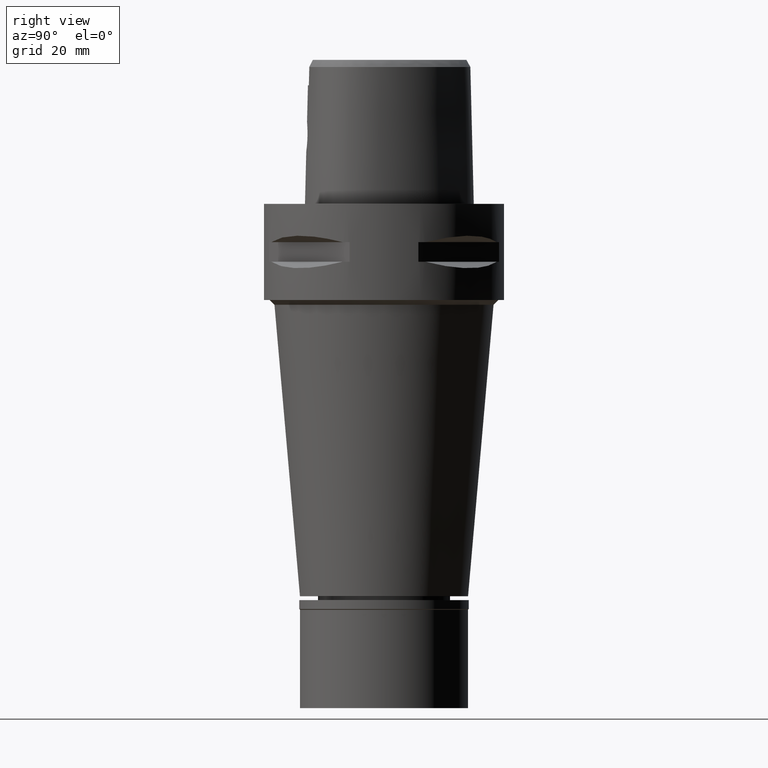
[diagram: clean part render]
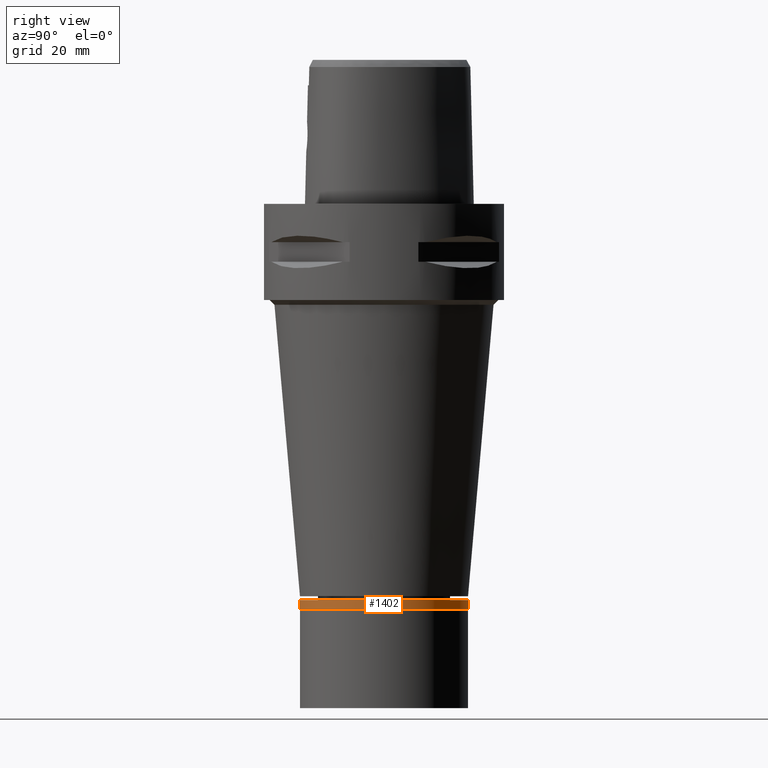
[diagram: same view with one face highlighted and labeled with its STEP entity id]
A machine part, right view. The second image highlights one B-rep face of the part: STEP entity #1402.
In plain terms, the highlighted cylindrical surface (partial cylindrical patch) has radius 17.65 mm, axis along (0, 0, -1).
Its self-contained STEP definition (entity closure, byte-faithful):
#2 = CARTESIAN_POINT ( 'NONE',  ( 0.0000000000000000000, -17.64999999999999858, 0.0000000000000000000 ) ) ;
#29 = VERTEX_POINT ( 'NONE', #3543 ) ;
#91 = CARTESIAN_POINT ( 'NONE',  ( 0.0000000000000000000, 0.0000000000000000000, 0.0000000000000000000 ) ) ;
#294 = EDGE_CURVE ( 'NONE', #29, #2114, #4610, .T. ) ;
#304 = DIRECTION ( 'NONE',  ( 0.0000000000000000000, 0.0000000000000000000, -1.000000000000000000 ) ) ;
#418 = FACE_OUTER_BOUND ( 'NONE', #1207, .T. ) ;
#886 = AXIS2_PLACEMENT_3D ( 'NONE', #4041, #2101, #3236 ) ;
#969 = ORIENTED_EDGE ( 'NONE', *, *, #294, .T. ) ;
#1083 = CARTESIAN_POINT ( 'NONE',  ( 0.0000000000000000000, 0.0000000000000000000, 0.0000000000000000000 ) ) ;
#1207 = EDGE_LOOP ( 'NONE', ( #969, #4885, #3654, #3462 ) ) ;
#1242 = DIRECTION ( 'NONE',  ( 0.0000000000000000000, -1.000000000000000000, 0.0000000000000000000 ) ) ;
#1254 = CARTESIAN_POINT ( 'NONE',  ( 0.0000000000000000000, -17.64999999999999858, 0.0000000000000000000 ) ) ;
#1281 = VECTOR ( 'NONE', #1496, 1000.000000000000000 ) ;
#1402 = ADVANCED_FACE ( 'NONE', ( #418 ), #4667, .T. ) ;
#1496 = DIRECTION ( 'NONE',  ( 0.0000000000000000000, 0.0000000000000000000, -1.000000000000000000 ) ) ;
#2086 = CIRCLE ( 'NONE', #886, 17.64999999999999858 ) ;
#2101 = DIRECTION ( 'NONE',  ( 0.0000000000000000000, 0.0000000000000000000, 1.000000000000000000 ) ) ;
#2114 = VERTEX_POINT ( 'NONE', #1254 ) ;
#2599 = AXIS2_PLACEMENT_3D ( 'NONE', #1083, #304, #3702 ) ;
#2654 = LINE ( 'NONE', #4839, #1281 ) ;
#2733 = DIRECTION ( 'NONE',  ( 0.0000000000000000000, 0.0000000000000000000, -1.000000000000000000 ) ) ;
#2818 = EDGE_CURVE ( 'NONE', #29, #3300, #2654, .T. ) ;
#2961 = VECTOR ( 'NONE', #3054, 1000.000000000000000 ) ;
#3054 = DIRECTION ( 'NONE',  ( 0.0000000000000000000, 0.0000000000000000000, -1.000000000000000000 ) ) ;
#3236 = DIRECTION ( 'NONE',  ( 0.0000000000000000000, -1.000000000000000000, 0.0000000000000000000 ) ) ;
#3300 = VERTEX_POINT ( 'NONE', #3758 ) ;
#3462 = ORIENTED_EDGE ( 'NONE', *, *, #2818, .F. ) ;
#3543 = CARTESIAN_POINT ( 'NONE',  ( 0.0000000000000000000, 17.64999999999999858, 0.0000000000000000000 ) ) ;
#3654 = ORIENTED_EDGE ( 'NONE', *, *, #3903, .T. ) ;
#3702 = DIRECTION ( 'NONE',  ( 0.0000000000000000000, 1.000000000000000000, 0.0000000000000000000 ) ) ;
#3734 = AXIS2_PLACEMENT_3D ( 'NONE', #91, #2733, #1242 ) ;
#3758 = CARTESIAN_POINT ( 'NONE',  ( 0.0000000000000000000, 17.64999999999999858, -1.850000000000000089 ) ) ;
#3807 = EDGE_CURVE ( 'NONE', #2114, #4936, #3859, .T. ) ;
#3859 = LINE ( 'NONE', #2, #2961 ) ;
#3903 = EDGE_CURVE ( 'NONE', #4936, #3300, #2086, .T. ) ;
#4041 = CARTESIAN_POINT ( 'NONE',  ( 0.0000000000000000000, 0.0000000000000000000, -1.850000000000000089 ) ) ;
#4610 = CIRCLE ( 'NONE', #2599, 17.64999999999999858 ) ;
#4667 = CYLINDRICAL_SURFACE ( 'NONE', #3734, 17.64999999999999858 ) ;
#4839 = CARTESIAN_POINT ( 'NONE',  ( 0.0000000000000000000, 17.64999999999999858, 0.0000000000000000000 ) ) ;
#4844 = CARTESIAN_POINT ( 'NONE',  ( 0.0000000000000000000, -17.64999999999999858, -1.850000000000000089 ) ) ;
#4885 = ORIENTED_EDGE ( 'NONE', *, *, #3807, .T. ) ;
#4936 = VERTEX_POINT ( 'NONE', #4844 ) ;